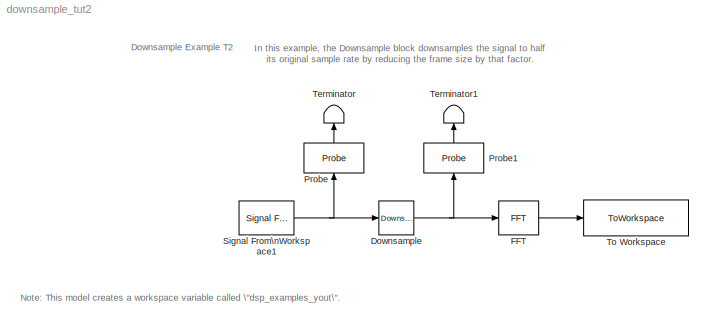
MODEL downsample_tut2
KIND model
CONFIG AbsTol = auto
CONFIG FixedStep = auto
CONFIG MaxStep = auto
CONFIG MinStep = auto
CONFIG RelTol = 1e-3
CONFIG Solver = FixedStepDiscrete
CONFIG SolverMode = Auto
CONFIG StartTime = 0.0
CONFIG StopTime = 10.0
BLOCK [Reference] Downsample  REF=dspsigops/Downsample
  N = 2
  Ports = [1, 1]
  SourceBlock = dspsigops/Downsample
  SourceType = Downsample
  fmode = Maintain input frame rate
  ic = 0
  phase = 0
  smode = Allow multirate
BLOCK [Reference] FFT  REF=dspxfrm3/FFT
  BitRevOrder = off
  CompMethod = Table lookup
  Ports = [1, 1]
  SourceBlock = dspxfrm3/FFT
  SourceType = FFT
  TableOpt = Speed
BLOCK [Probe] Probe
  Ports = [1, 1]
  ProbeComplexSignal = off
  ProbeWidth = off
BLOCK [Probe] Probe1
  Ports = [1, 1]
  ProbeComplexSignal = off
  ProbeWidth = off
BLOCK [Reference] Signal From\nWorkspace1  REF=dspsrcs4/Signal From\nWorkspace
  OutputAfterFinalValue = Setting to zero
  Ports = [0, 1]
  SourceBlock = dspsrcs4/Signal From\nWorkspace
  SourceType = Signal From Workspace
  Ts = 0.125
  X = 1:1000
  nsamps = 8
BLOCK [Terminator] Terminator
BLOCK [Terminator] Terminator1
BLOCK [ToWorkspace] To Workspace
  MaxDataPoints = inf
  SampleTime = -1
  SaveFormat = Array
  VariableName = dsp_examples_yout
ANNOTATION (root): Downsample Example T2
ANNOTATION (root): In this example, the Downsample block downsamples the signal to half\nits original sample rate by reducing the frame size by that factor.
ANNOTATION (root): Note: This model creates a workspace variable called \"dsp_examples_yout\".
NET Downsample:1 -> FFT:1, Probe1:1
LINE FFT:1 -> To Workspace:1
LINE Probe1:1 -> Terminator1:1
LINE Probe:1 -> Terminator:1
NET Signal From\nWorkspace1:1 -> Downsample:1, Probe:1
note: NET lines group one-source signal fan-out (src -> all destinations, sorted); 1:1 wires keep LINE
